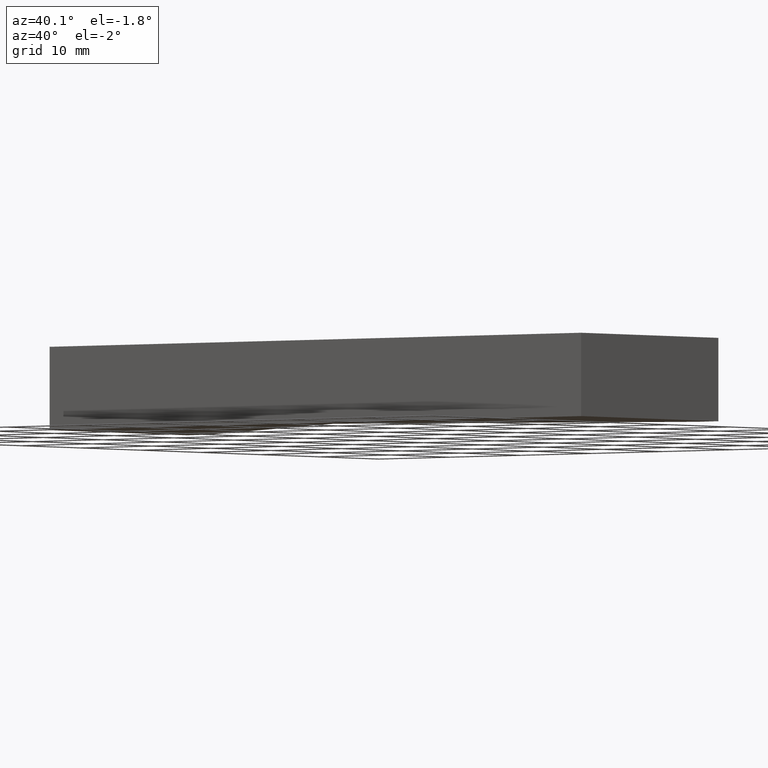
[diagram: clean part render]
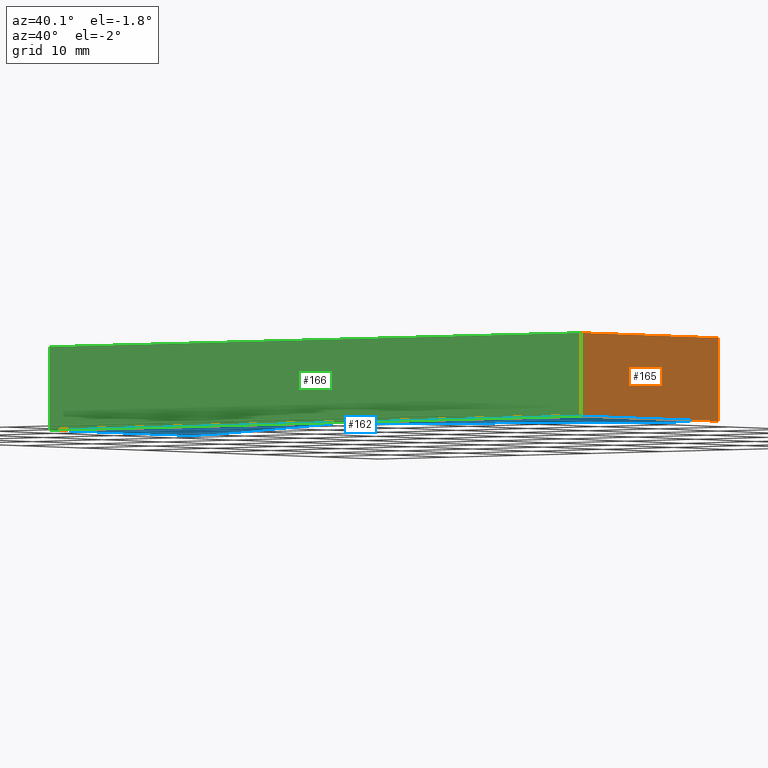
[diagram: same view with three faces highlighted in distinct colors, each labeled with its STEP entity id]
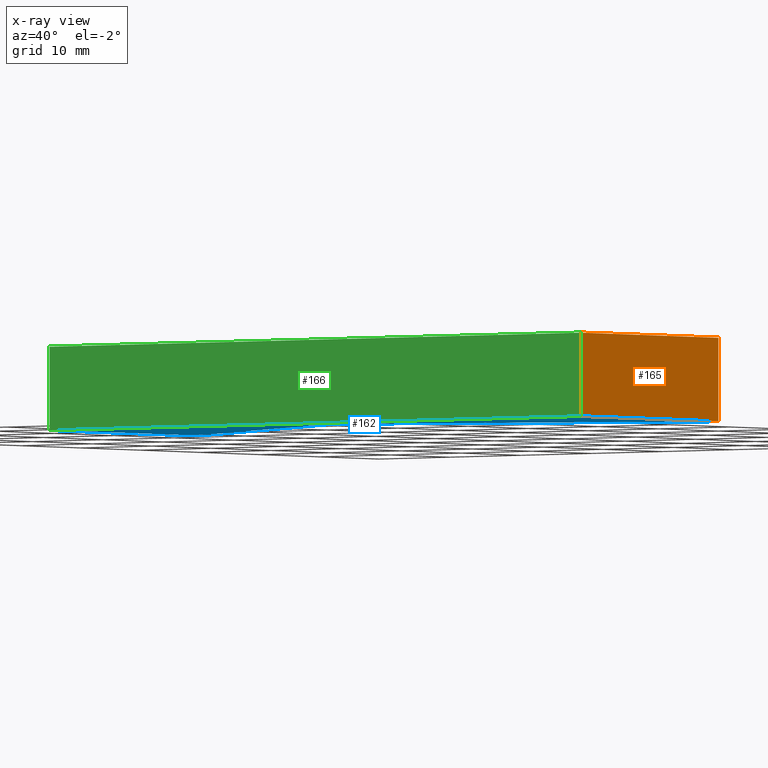
[diagram: x-ray of the same camera — body ghosted, the three highlighted faces saturated]
A machine part, auxiliary view with three faces highlighted in distinct colors.
The next image is the same camera in x-ray (body ghosted, the three faces saturated) — at least one of them is partly hidden behind the body in this view.
Their STEP definitions:

[orange] entity #165 — the highlighted planar face has unit normal (1, -0, 0).
#19=FACE_OUTER_BOUND('',#28,.T.);
#28=EDGE_LOOP('',(#126,#127,#128,#129));
#38=LINE('',#256,#59);
#45=LINE('',#269,#66);
#46=LINE('',#272,#67);
#47=LINE('',#273,#68);
#59=VECTOR('',#211,10.);
#66=VECTOR('',#222,10.);
#67=VECTOR('',#225,10.);
#68=VECTOR('',#226,10.);
#80=VERTEX_POINT('',#253);
#81=VERTEX_POINT('',#255);
#85=VERTEX_POINT('',#267);
#86=VERTEX_POINT('',#271);
#94=EDGE_CURVE('',#81,#80,#38,.T.);
#101=EDGE_CURVE('',#80,#85,#45,.T.);
#102=EDGE_CURVE('',#85,#86,#46,.T.);
#103=EDGE_CURVE('',#81,#86,#47,.T.);
#126=ORIENTED_EDGE('',*,*,#102,.T.);
#127=ORIENTED_EDGE('',*,*,#103,.F.);
#128=ORIENTED_EDGE('',*,*,#94,.T.);
#129=ORIENTED_EDGE('',*,*,#101,.T.);
#156=PLANE('',#197);
#165=ADVANCED_FACE('',(#19),#156,.T.);
#197=AXIS2_PLACEMENT_3D('',#270,#223,#224);
#211=DIRECTION('',(1.93082265152201E-16,1.,0.));
#222=DIRECTION('',(0.,0.,1.));
#223=DIRECTION('center_axis',(1.,-1.93082265152201E-16,0.));
#224=DIRECTION('ref_axis',(0.,0.,-1.));
#225=DIRECTION('',(-1.93082265152201E-16,-1.,0.));
#226=DIRECTION('',(0.,0.,1.));
#253=CARTESIAN_POINT('',(37.5,23.,-4.5));
#255=CARTESIAN_POINT('',(37.5,-1.61306094028784E-15,-4.5));
#256=CARTESIAN_POINT('',(37.5,-1.61306094028784E-15,-4.5));
#267=CARTESIAN_POINT('',(37.5,23.,4.5));
#269=CARTESIAN_POINT('',(37.5,23.,0.));
#270=CARTESIAN_POINT('Origin',(37.5,23.,0.));
#271=CARTESIAN_POINT('',(37.5,-1.61306094028784E-15,4.5));
#272=CARTESIAN_POINT('',(37.5,-1.61306094028784E-15,4.5));
#273=CARTESIAN_POINT('',(37.5,-1.61306094028784E-15,0.));

[blue] entity #162 — the highlighted planar face has unit normal (0, 0, 1).
#16=FACE_OUTER_BOUND('',#25,.T.);
#25=EDGE_LOOP('',(#111,#112,#113,#114,#115,#116,#117));
#34=LINE('',#248,#55);
#35=LINE('',#250,#56);
#36=LINE('',#252,#57);
#37=LINE('',#254,#58);
#38=LINE('',#256,#59);
#39=LINE('',#258,#60);
#40=LINE('',#259,#61);
#55=VECTOR('',#207,10.);
#56=VECTOR('',#208,10.);
#57=VECTOR('',#209,10.);
#58=VECTOR('',#210,10.);
#59=VECTOR('',#211,10.);
#60=VECTOR('',#212,10.);
#61=VECTOR('',#213,10.);
#76=VERTEX_POINT('',#246);
#77=VERTEX_POINT('',#247);
#78=VERTEX_POINT('',#249);
#79=VERTEX_POINT('',#251);
#80=VERTEX_POINT('',#253);
#81=VERTEX_POINT('',#255);
#82=VERTEX_POINT('',#257);
#90=EDGE_CURVE('',#76,#77,#34,.T.);
#91=EDGE_CURVE('',#78,#76,#35,.T.);
#92=EDGE_CURVE('',#79,#78,#36,.T.);
#93=EDGE_CURVE('',#80,#79,#37,.T.);
#94=EDGE_CURVE('',#81,#80,#38,.T.);
#95=EDGE_CURVE('',#82,#81,#39,.T.);
#96=EDGE_CURVE('',#77,#82,#40,.T.);
#111=ORIENTED_EDGE('',*,*,#90,.F.);
#112=ORIENTED_EDGE('',*,*,#91,.F.);
#113=ORIENTED_EDGE('',*,*,#92,.F.);
#114=ORIENTED_EDGE('',*,*,#93,.F.);
#115=ORIENTED_EDGE('',*,*,#94,.F.);
#116=ORIENTED_EDGE('',*,*,#95,.F.);
#117=ORIENTED_EDGE('',*,*,#96,.F.);
#153=PLANE('',#194);
#162=ADVANCED_FACE('',(#16),#153,.F.);
#194=AXIS2_PLACEMENT_3D('',#245,#205,#206);
#205=DIRECTION('center_axis',(0.,0.,1.));
#206=DIRECTION('ref_axis',(1.,0.,0.));
#207=DIRECTION('',(-1.,0.,0.));
#208=DIRECTION('',(-0.865140001465014,0.501530435631892,0.));
#209=DIRECTION('',(-0.865140001465014,-0.501530435631892,0.));
#210=DIRECTION('',(-1.,0.,0.));
#211=DIRECTION('',(1.93082265152201E-16,1.,0.));
#212=DIRECTION('',(1.,-1.22464679914735E-16,0.));
#213=DIRECTION('',(1.93082265152201E-16,-1.,0.));
#245=CARTESIAN_POINT('Origin',(6.93889390390723E-16,8.24076407513717,-4.5));
#246=CARTESIAN_POINT('',(-34.5,23.,-4.5));
#247=CARTESIAN_POINT('',(-37.5,23.,-4.5));
#248=CARTESIAN_POINT('',(-34.5,23.,-4.5));
#249=CARTESIAN_POINT('',(0.,3.,-4.5));
#250=CARTESIAN_POINT('',(0.,3.,-4.5));
#251=CARTESIAN_POINT('',(34.5,23.,-4.5));
#252=CARTESIAN_POINT('',(34.5,23.,-4.5));
#253=CARTESIAN_POINT('',(37.5,23.,-4.5));
#254=CARTESIAN_POINT('',(37.5,23.,-4.5));
#255=CARTESIAN_POINT('',(37.5,-1.61306094028784E-15,-4.5));
#256=CARTESIAN_POINT('',(37.5,-1.61306094028784E-15,-4.5));
#257=CARTESIAN_POINT('',(-37.5,-1.61306094028784E-15,-4.5));
#258=CARTESIAN_POINT('',(0.,2.97936455651473E-15,-4.5));
#259=CARTESIAN_POINT('',(-37.5,23.,-4.5));

[green] entity #166 — the highlighted planar face has unit normal (0, -1, 0).
#20=FACE_OUTER_BOUND('',#29,.T.);
#29=EDGE_LOOP('',(#130,#131,#132,#133));
#39=LINE('',#258,#60);
#47=LINE('',#273,#68);
#48=LINE('',#276,#69);
#49=LINE('',#277,#70);
#60=VECTOR('',#212,10.);
#68=VECTOR('',#226,10.);
#69=VECTOR('',#229,10.);
#70=VECTOR('',#230,10.);
#81=VERTEX_POINT('',#255);
#82=VERTEX_POINT('',#257);
#86=VERTEX_POINT('',#271);
#87=VERTEX_POINT('',#275);
#95=EDGE_CURVE('',#82,#81,#39,.T.);
#103=EDGE_CURVE('',#81,#86,#47,.T.);
#104=EDGE_CURVE('',#86,#87,#48,.T.);
#105=EDGE_CURVE('',#82,#87,#49,.T.);
#130=ORIENTED_EDGE('',*,*,#104,.T.);
#131=ORIENTED_EDGE('',*,*,#105,.F.);
#132=ORIENTED_EDGE('',*,*,#95,.T.);
#133=ORIENTED_EDGE('',*,*,#103,.T.);
#157=PLANE('',#198);
#166=ADVANCED_FACE('',(#20),#157,.T.);
#198=AXIS2_PLACEMENT_3D('',#274,#227,#228);
#212=DIRECTION('',(1.,-1.22464679914735E-16,0.));
#226=DIRECTION('',(0.,0.,1.));
#227=DIRECTION('center_axis',(1.22464679914735E-16,-1.,0.));
#228=DIRECTION('ref_axis',(0.,0.,-1.));
#229=DIRECTION('',(-1.,-1.22464679914735E-16,0.));
#230=DIRECTION('',(0.,0.,1.));
#255=CARTESIAN_POINT('',(37.5,-1.61306094028784E-15,-4.5));
#257=CARTESIAN_POINT('',(-37.5,-1.61306094028784E-15,-4.5));
#258=CARTESIAN_POINT('',(0.,2.97936455651473E-15,-4.5));
#271=CARTESIAN_POINT('',(37.5,-1.61306094028784E-15,4.5));
#273=CARTESIAN_POINT('',(37.5,-1.61306094028784E-15,0.));
#274=CARTESIAN_POINT('Origin',(0.,2.97936455651473E-15,0.));
#275=CARTESIAN_POINT('',(-37.5,-1.61306094028784E-15,4.5));
#276=CARTESIAN_POINT('',(-37.5,-1.61306094028784E-15,4.5));
#277=CARTESIAN_POINT('',(-37.5,-1.61306094028784E-15,0.));